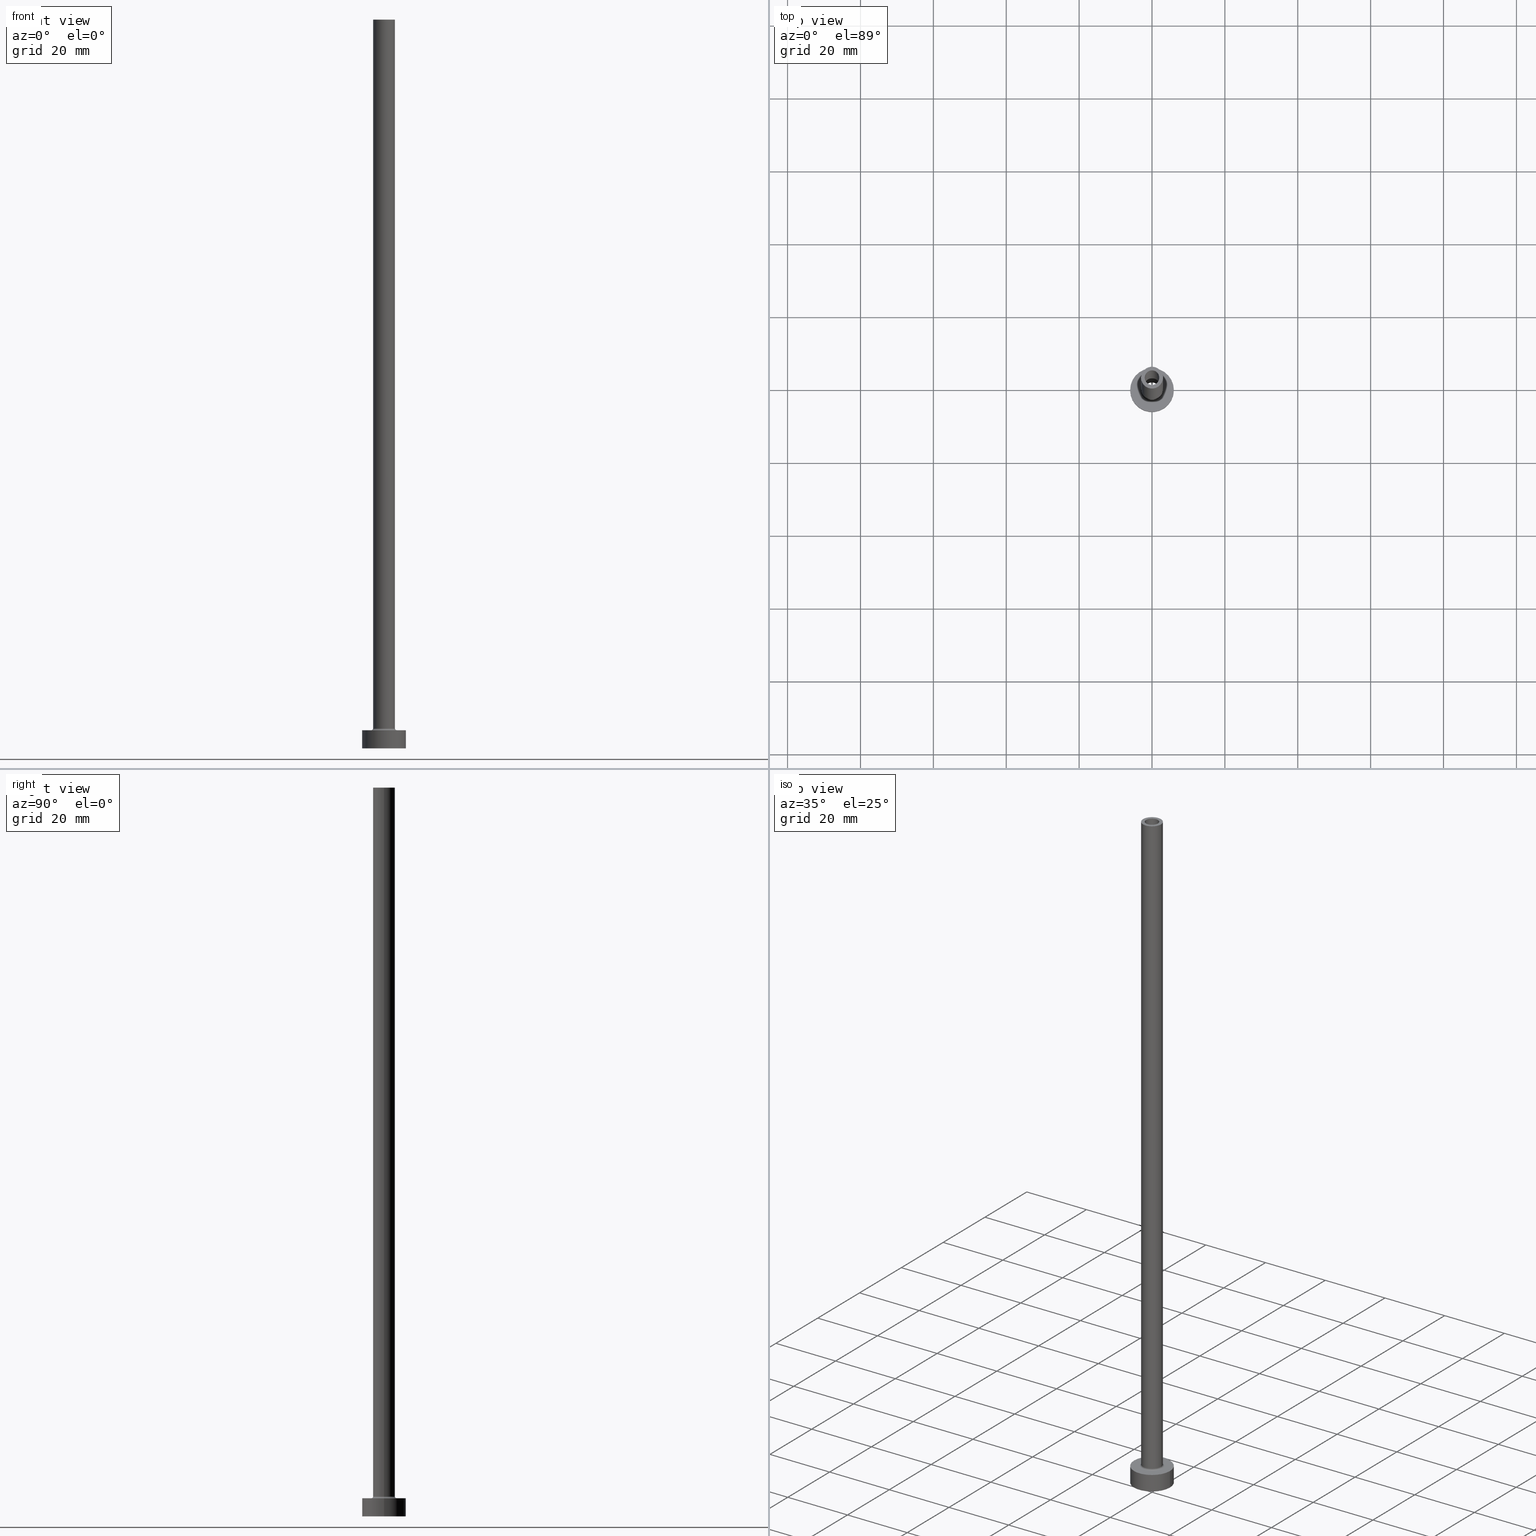
[diagram: canonical four-view strip — front | top / right | iso, engineering-drawing reading convention]
A machine part, canonical four-view strip (front | top / right | iso — engineering-drawing reading convention). The complete STEP part file that produces these views, byte-faithful:
ISO-10303-21;
HEADER;
FILE_DESCRIPTION (( 'STEP AP203' ),
    '1' );
FILE_NAME ('8da7.STEP',
    '2023-02-13T11:08:37',
    ( '' ),
    ( '' ),
    'SwSTEP 2.0',
    'SolidWorks 2019',
    '' );
FILE_SCHEMA (( 'CONFIG_CONTROL_DESIGN' ));
ENDSEC;

DATA;
#1 = AXIS2_PLACEMENT_3D ( 'NONE', #142, #241, #347 ) ;
#2 = CARTESIAN_POINT ( 'NONE',  ( 0.000000000000000000, 0.000000000000000000, 5.500000000000005329 ) ) ;
#3 = DIRECTION ( 'NONE',  ( 0.000000000000000000, 0.000000000000000000, 1.000000000000000000 ) ) ;
#4 = EDGE_CURVE ( 'NONE', #21, #20, #270, .T. ) ;
#5 = DIRECTION ( 'NONE',  ( 1.000000000000000000, 0.000000000000000000, 0.000000000000000000 ) ) ;
#6 = ORIENTED_EDGE ( 'NONE', *, *, #333, .F. ) ;
#7 = LINE ( 'NONE', #283, #454 ) ;
#8 = DIRECTION ( 'NONE',  ( 1.000000000000000000, 0.000000000000000000, 0.000000000000000000 ) ) ;
#9 = VERTEX_POINT ( 'NONE', #225 ) ;
#10 = DIRECTION ( 'NONE',  ( 1.000000000000000000, 0.000000000000000000, 0.000000000000000000 ) ) ;
#11 = FACE_OUTER_BOUND ( 'NONE', #300, .T. ) ;
#12 = DIRECTION ( 'NONE',  ( 0.000000000000000000, 0.000000000000000000, 1.000000000000000000 ) ) ;
#13 = PERSON_AND_ORGANIZATION ( #423, #14 ) ;
#14 = ORGANIZATION ( 'NEUR�EN�', 'NEUR�EN�', '' ) ;
#15 = DIRECTION ( 'NONE',  ( -1.000000000000000000, 0.000000000000000000, 0.000000000000000000 ) ) ;
#16 = ADVANCED_FACE ( 'NONE', ( #372, #56 ), #342, .F. ) ;
#17 = ORIENTED_EDGE ( 'NONE', *, *, #77, .T. ) ;
#18 = APPROVAL_DATE_TIME ( #159, #416 ) ;
#19 = DIRECTION ( 'NONE',  ( 0.000000000000000000, 0.000000000000000000, 1.000000000000000000 ) ) ;
#20 = VERTEX_POINT ( 'NONE', #168 ) ;
#21 = VERTEX_POINT ( 'NONE', #446 ) ;
#22 = CIRCLE ( 'NONE', #185, 3.000000000000000444 ) ;
#23 = CARTESIAN_POINT ( 'NONE',  ( 0.000000000000000000, 0.000000000000000000, 0.000000000000000000 ) ) ;
#24 = EDGE_CURVE ( 'NONE', #50, #321, #407, .T. ) ;
#25 = FACE_OUTER_BOUND ( 'NONE', #250, .T. ) ;
#26 = PRODUCT_DEFINITION ( 'NEZN�M�', '', #253, #437 ) ;
#27 = ORIENTED_EDGE ( 'NONE', *, *, #48, .T. ) ;
#28 = DIRECTION ( 'NONE',  ( 1.000000000000000000, 0.000000000000000000, 0.000000000000000000 ) ) ;
#29 = PERSON_AND_ORGANIZATION_ROLE ( 'creator' ) ;
#30 = DIRECTION ( 'NONE',  ( -0.000000000000000000, -0.000000000000000000, -1.000000000000000000 ) ) ;
#31 = CIRCLE ( 'NONE', #286, 2.000000000000000000 ) ;
#32 = DIRECTION ( 'NONE',  ( -1.000000000000000000, 0.000000000000000000, 0.000000000000000000 ) ) ;
#33 = FACE_OUTER_BOUND ( 'NONE', #361, .T. ) ;
#34 = ADVANCED_FACE ( 'NONE', ( #111 ), #119, .F. ) ;
#35 = AXIS2_PLACEMENT_3D ( 'NONE', #382, #349, #315 ) ;
#36 = VECTOR ( 'NONE', #447, 1000.000000000000000 ) ;
#37 = AXIS2_PLACEMENT_3D ( 'NONE', #421, #117, #10 ) ;
#38 = FACE_BOUND ( 'NONE', #338, .T. ) ;
#39 = DIRECTION ( 'NONE',  ( -1.000000000000000000, 0.000000000000000000, 0.000000000000000000 ) ) ;
#40 = EDGE_CURVE ( 'NONE', #226, #288, #153, .T. ) ;
#41 = ORIENTED_EDGE ( 'NONE', *, *, #238, .T. ) ;
#42 = CARTESIAN_POINT ( 'NONE',  ( 0.000000000000000000, 0.000000000000000000, 200.0000000000000000 ) ) ;
#43 = FACE_OUTER_BOUND ( 'NONE', #363, .T. ) ;
#44 = ORIENTED_EDGE ( 'NONE', *, *, #193, .F. ) ;
#45 = APPROVAL_PERSON_ORGANIZATION ( #294, #195, #125 ) ;
#46 = EDGE_LOOP ( 'NONE', ( #410, #61, #187, #93 ) ) ;
#47 = DIRECTION ( 'NONE',  ( 0.000000000000000000, 0.000000000000000000, 1.000000000000000000 ) ) ;
#48 = EDGE_CURVE ( 'NONE', #321, #81, #399, .T. ) ;
#49 = CARTESIAN_POINT ( 'NONE',  ( 0.000000000000000000, 0.000000000000000000, 155.0000000000000284 ) ) ;
#50 = VERTEX_POINT ( 'NONE', #314 ) ;
#51 = ORIENTED_EDGE ( 'NONE', *, *, #4, .T. ) ;
#52 = DIRECTION ( 'NONE',  ( -1.000000000000000000, 0.000000000000000000, 0.000000000000000000 ) ) ;
#53 = ORIENTED_EDGE ( 'NONE', *, *, #232, .F. ) ;
#54 = EDGE_CURVE ( 'NONE', #376, #302, #308, .T. ) ;
#55 = CARTESIAN_POINT ( 'NONE',  ( 0.000000000000000000, 0.000000000000000000, 5.000000000000000000 ) ) ;
#56 = FACE_OUTER_BOUND ( 'NONE', #271, .T. ) ;
#57 = CARTESIAN_POINT ( 'NONE',  ( 0.000000000000000000, 0.000000000000000000, 200.0000000000000000 ) ) ;
#58 = DIRECTION ( 'NONE',  ( 1.000000000000000000, 0.000000000000000000, 0.000000000000000000 ) ) ;
#59 = AXIS2_PLACEMENT_3D ( 'NONE', #277, #79, #211 ) ;
#60 = AXIS2_PLACEMENT_3D ( 'NONE', #394, #249, #84 ) ;
#61 = ORIENTED_EDGE ( 'NONE', *, *, #333, .T. ) ;
#62 = EDGE_CURVE ( 'NONE', #9, #226, #71, .T. ) ;
#63 = ORIENTED_EDGE ( 'NONE', *, *, #62, .F. ) ;
#64 = DATE_AND_TIME ( #231, #272 ) ;
#65 = DIRECTION ( 'NONE',  ( 0.000000000000000000, 0.000000000000000000, 1.000000000000000000 ) ) ;
#66 = CALENDAR_DATE ( 2023, 13, 2 ) ;
#67 = ADVANCED_FACE ( 'NONE', ( #33 ), #420, .T. ) ;
#68 = EDGE_CURVE ( 'NONE', #329, #259, #383, .T. ) ;
#69 = AXIS2_PLACEMENT_3D ( 'NONE', #285, #90, #365 ) ;
#70 = DATE_TIME_ROLE ( 'classification_date' ) ;
#71 = LINE ( 'NONE', #72, #290 ) ;
#72 = CARTESIAN_POINT ( 'NONE',  ( -2.000000000000000000, 0.000000000000000000, 200.0000000000000000 ) ) ;
#73 = ADVANCED_FACE ( 'NONE', ( #424, #362 ), #325, .F. ) ;
#74 = CC_DESIGN_PERSON_AND_ORGANIZATION_ASSIGNMENT ( #346, #29, ( #26 ) ) ;
#75 = SECURITY_CLASSIFICATION ( '', '', #237 ) ;
#76 = AXIS2_PLACEMENT_3D ( 'NONE', #461, #282, #355 ) ;
#77 = EDGE_CURVE ( 'NONE', #86, #439, #7, .T. ) ;
#78 = EDGE_CURVE ( 'NONE', #266, #400, #99, .T. ) ;
#79 = DIRECTION ( 'NONE',  ( 0.000000000000000000, 0.000000000000000000, -1.000000000000000000 ) ) ;
#80 = EDGE_LOOP ( 'NONE', ( #44, #184 ) ) ;
#81 = VERTEX_POINT ( 'NONE', #386 ) ;
#82 = CARTESIAN_POINT ( 'NONE',  ( -3.000000000000000444, 0.000000000000000000, 5.500000000000005329 ) ) ;
#83 = CIRCLE ( 'NONE', #227, 3.500000000000000444 ) ;
#84 = DIRECTION ( 'NONE',  ( 1.000000000000000000, 0.000000000000000000, -0.000000000000000000 ) ) ;
#85 = CARTESIAN_POINT ( 'NONE',  ( 0.000000000000000000, 0.000000000000000000, 200.0000000000000000 ) ) ;
#86 = VERTEX_POINT ( 'NONE', #322 ) ;
#87 = CYLINDRICAL_SURFACE ( 'NONE', #273, 2.000000000000000000 ) ;
#88 = ORIENTED_EDGE ( 'NONE', *, *, #219, .T. ) ;
#89 = EDGE_CURVE ( 'NONE', #302, #376, #201, .T. ) ;
#90 = DIRECTION ( 'NONE',  ( 0.000000000000000000, 0.000000000000000000, 1.000000000000000000 ) ) ;
#91 = APPLICATION_PROTOCOL_DEFINITION ( 'international standard', 'config_control_design', 1994, #432 ) ;
#92 = ORIENTED_EDGE ( 'NONE', *, *, #78, .T. ) ;
#93 = ORIENTED_EDGE ( 'NONE', *, *, #337, .F. ) ;
#94 = DIRECTION ( 'NONE',  ( 1.000000000000000000, 0.000000000000000000, 0.000000000000000000 ) ) ;
#95 = APPROVAL_STATUS ( 'not_yet_approved' ) ;
#96 = ORIENTED_EDGE ( 'NONE', *, *, #327, .T. ) ;
#97 = CARTESIAN_POINT ( 'NONE',  ( -2.149999999999999911, 0.000000000000000000, 155.0000000000000284 ) ) ;
#98 = VECTOR ( 'NONE', #276, 1000.000000000000000 ) ;
#99 = CIRCLE ( 'NONE', #37, 2.149999999999999911 ) ;
#100 = EDGE_LOOP ( 'NONE', ( #354, #182, #436, #63 ) ) ;
#101 = CYLINDRICAL_SURFACE ( 'NONE', #183, 6.000000000000000888 ) ;
#102 = CIRCLE ( 'NONE', #200, 0.5000000000000004441 ) ;
#103 = DATE_AND_TIME ( #409, #167 ) ;
#104 = AXIS2_PLACEMENT_3D ( 'NONE', #216, #47, #188 ) ;
#105 = ADVANCED_FACE ( 'NONE', ( #150 ), #87, .F. ) ;
#106 = PERSON_AND_ORGANIZATION ( #423, #14 ) ;
#107 = LOCAL_TIME ( 12, 8, 37.00000000000000000, #174 ) ;
#108 = CARTESIAN_POINT ( 'NONE',  ( 2.000000000000000000, 2.449293598294705921E-16, 200.0000000000000000 ) ) ;
#109 = CARTESIAN_POINT ( 'NONE',  ( 0.000000000000000000, 0.000000000000000000, 161.0811183182043180 ) ) ;
#110 = CYLINDRICAL_SURFACE ( 'NONE', #59, 2.000000000000000000 ) ;
#111 = FACE_OUTER_BOUND ( 'NONE', #46, .T. ) ;
#112 = DIRECTION ( 'NONE',  ( -0.000000000000000000, -0.000000000000000000, -1.000000000000000000 ) ) ;
#113 = DIRECTION ( 'NONE',  ( 1.000000000000000000, 0.000000000000000000, 0.000000000000000000 ) ) ;
#114 = PERSON_AND_ORGANIZATION ( #423, #14 ) ;
#115 = DIRECTION ( 'NONE',  ( -0.000000000000000000, -0.000000000000000000, -1.000000000000000000 ) ) ;
#116 = ORIENTED_EDGE ( 'NONE', *, *, #337, .T. ) ;
#117 = DIRECTION ( 'NONE',  ( 0.000000000000000000, 0.000000000000000000, 1.000000000000000000 ) ) ;
#118 = CARTESIAN_POINT ( 'NONE',  ( 0.000000000000000000, 0.000000000000000000, 200.0000000000000000 ) ) ;
#119 = TOROIDAL_SURFACE ( 'NONE', #371, 3.500000000000000444, 0.5000000000000000000 ) ;
#120 = EDGE_CURVE ( 'NONE', #329, #86, #246, .T. ) ;
#121 = AXIS2_PLACEMENT_3D ( 'NONE', #133, #309, #58 ) ;
#122 = ORIENTED_EDGE ( 'NONE', *, *, #458, .T. ) ;
#123 = FACE_OUTER_BOUND ( 'NONE', #170, .T. ) ;
#124 = AXIS2_PLACEMENT_3D ( 'NONE', #180, #3, #145 ) ;
#125 = APPROVAL_ROLE ( '' ) ;
#126 = EDGE_LOOP ( 'NONE', ( #6, #345, #116, #312 ) ) ;
#127 = CARTESIAN_POINT ( 'NONE',  ( 2.000000000000000000, 2.449293598294705921E-16, 155.0000000000000284 ) ) ;
#128 = ORIENTED_EDGE ( 'NONE', *, *, #78, .F. ) ;
#129 = CARTESIAN_POINT ( 'NONE',  ( 2.149999999999999911, 2.632990618166809235E-16, 0.000000000000000000 ) ) ;
#130 = CARTESIAN_POINT ( 'NONE',  ( 6.000000000000000888, 7.347880794884120722E-16, 0.000000000000000000 ) ) ;
#131 = EDGE_CURVE ( 'NONE', #427, #288, #147, .T. ) ;
#132 = ORIENTED_EDGE ( 'NONE', *, *, #340, .T. ) ;
#133 = CARTESIAN_POINT ( 'NONE',  ( 0.000000000000000000, 0.000000000000000000, 0.000000000000000000 ) ) ;
#134 = CARTESIAN_POINT ( 'NONE',  ( 6.000000000000000888, 7.347880794884120722E-16, 5.000000000000000000 ) ) ;
#135 = DATE_AND_TIME ( #224, #303 ) ;
#136 = ORIENTED_EDGE ( 'NONE', *, *, #68, .F. ) ;
#137 = FACE_OUTER_BOUND ( 'NONE', #356, .T. ) ;
#138 = AXIS2_PLACEMENT_3D ( 'NONE', #412, #353, #39 ) ;
#139 =( NAMED_UNIT ( * ) PLANE_ANGLE_UNIT ( ) SI_UNIT ( $, .RADIAN. ) );
#140 = DIRECTION ( 'NONE',  ( 0.000000000000000000, 0.000000000000000000, -1.000000000000000000 ) ) ;
#141 = ADVANCED_FACE ( 'NONE', ( #38, #287 ), #428, .T. ) ;
#142 = CARTESIAN_POINT ( 'NONE',  ( 0.000000000000000000, 0.000000000000000000, 0.000000000000000000 ) ) ;
#143 = PERSON_AND_ORGANIZATION ( #423, #14 ) ;
#144 = CYLINDRICAL_SURFACE ( 'NONE', #264, 3.000000000000000444 ) ;
#145 = DIRECTION ( 'NONE',  ( 1.000000000000000000, 0.000000000000000000, 0.000000000000000000 ) ) ;
#146 = EDGE_CURVE ( 'NONE', #86, #329, #377, .T. ) ;
#147 = LINE ( 'NONE', #392, #456 ) ;
#148 = DIRECTION ( 'NONE',  ( 0.000000000000000000, 0.000000000000000000, 1.000000000000000000 ) ) ;
#149 = ORIENTED_EDGE ( 'NONE', *, *, #458, .F. ) ;
#150 = FACE_OUTER_BOUND ( 'NONE', #100, .T. ) ;
#151 = ORIENTED_EDGE ( 'NONE', *, *, #40, .T. ) ;
#152 = UNCERTAINTY_MEASURE_WITH_UNIT (LENGTH_MEASURE( 1.000000000000000082E-05 ), #390, 'distance_accuracy_value', 'NONE');
#153 = CIRCLE ( 'NONE', #236, 2.000000000000000000 ) ;
#154 = CARTESIAN_POINT ( 'NONE',  ( 0.000000000000000000, 0.000000000000000000, 200.0000000000000000 ) ) ;
#155 = PERSON_AND_ORGANIZATION_ROLE ( 'design_owner' ) ;
#156 =( GEOMETRIC_REPRESENTATION_CONTEXT ( 3 ) GLOBAL_UNCERTAINTY_ASSIGNED_CONTEXT ( ( #152 ) ) GLOBAL_UNIT_ASSIGNED_CONTEXT ( ( #390, #139, #240 ) ) REPRESENTATION_CONTEXT ( 'NONE', 'WORKASPACE' ) );
#157 = ORIENTED_EDGE ( 'NONE', *, *, #131, .F. ) ;
#158 = FACE_OUTER_BOUND ( 'NONE', #126, .T. ) ;
#159 = DATE_AND_TIME ( #332, #359 ) ;
#160 = ADVANCED_FACE ( 'NONE', ( #123 ), #430, .F. ) ;
#161 = EDGE_LOOP ( 'NONE', ( #450, #369 ) ) ;
#162 = DIRECTION ( 'NONE',  ( 0.000000000000000000, 0.000000000000000000, 1.000000000000000000 ) ) ;
#163 = SHAPE_DEFINITION_REPRESENTATION ( #196, #209 ) ;
#164 = ORIENTED_EDGE ( 'NONE', *, *, #77, .F. ) ;
#165 = AXIS2_PLACEMENT_3D ( 'NONE', #23, #269, #449 ) ;
#166 = CARTESIAN_POINT ( 'NONE',  ( -3.000000000000000444, 0.000000000000000000, 200.0000000000000000 ) ) ;
#167 = LOCAL_TIME ( 12, 8, 37.00000000000000000, #258 ) ;
#168 = CARTESIAN_POINT ( 'NONE',  ( 3.500000000000000444, 0.000000000000000000, 5.000000000000002665 ) ) ;
#169 = DIRECTION ( 'NONE',  ( 0.000000000000000000, 0.000000000000000000, -1.000000000000000000 ) ) ;
#170 = EDGE_LOOP ( 'NONE', ( #344, #92, #429, #364 ) ) ;
#171 = COORDINATED_UNIVERSAL_TIME_OFFSET ( 1, 0, .AHEAD. ) ;
#172 = ORIENTED_EDGE ( 'NONE', *, *, #54, .F. ) ;
#173 = AXIS2_PLACEMENT_3D ( 'NONE', #154, #292, #5 ) ;
#174 = COORDINATED_UNIVERSAL_TIME_OFFSET ( 1, 0, .AHEAD. ) ;
#175 = CARTESIAN_POINT ( 'NONE',  ( 0.000000000000000000, 0.000000000000000000, 155.0000000000000284 ) ) ;
#176 = CC_DESIGN_APPROVAL ( #195, ( #26 ) ) ;
#177 = DIRECTION ( 'NONE',  ( 0.000000000000000000, 0.000000000000000000, 1.000000000000000000 ) ) ;
#178 = DIRECTION ( 'NONE',  ( 0.000000000000000000, 0.000000000000000000, -1.000000000000000000 ) ) ;
#179 = DIRECTION ( 'NONE',  ( 1.000000000000000000, 0.000000000000000000, 0.000000000000000000 ) ) ;
#180 = CARTESIAN_POINT ( 'NONE',  ( 0.000000000000000000, 0.000000000000000000, 5.000000000000000000 ) ) ;
#181 = CC_DESIGN_DATE_AND_TIME_ASSIGNMENT ( #417, #70, ( #75 ) ) ;
#182 = ORIENTED_EDGE ( 'NONE', *, *, #131, .T. ) ;
#183 = AXIS2_PLACEMENT_3D ( 'NONE', #350, #112, #32 ) ;
#184 = ORIENTED_EDGE ( 'NONE', *, *, #238, .F. ) ;
#185 = AXIS2_PLACEMENT_3D ( 'NONE', #2, #389, #336 ) ;
#186 = APPLICATION_PROTOCOL_DEFINITION ( 'international standard', 'config_control_design', 1994, #310 ) ;
#187 = ORIENTED_EDGE ( 'NONE', *, *, #360, .F. ) ;
#188 = DIRECTION ( 'NONE',  ( 1.000000000000000000, 0.000000000000000000, 0.000000000000000000 ) ) ;
#189 = CC_DESIGN_PERSON_AND_ORGANIZATION_ASSIGNMENT ( #13, #155, ( #265 ) ) ;
#190 = EDGE_LOOP ( 'NONE', ( #53, #128 ) ) ;
#191 = ORIENTED_EDGE ( 'NONE', *, *, #68, .T. ) ;
#192 = ORIENTED_EDGE ( 'NONE', *, *, #297, .T. ) ;
#193 = EDGE_CURVE ( 'NONE', #9, #427, #229, .T. ) ;
#194 = ORIENTED_EDGE ( 'NONE', *, *, #352, .F. ) ;
#195 = APPROVAL ( #435, 'NEUR�EN�' ) ;
#196 = PRODUCT_DEFINITION_SHAPE ( 'NONE', 'NONE',  #26 ) ;
#197 = AXIS2_PLACEMENT_3D ( 'NONE', #281, #251, #213 ) ;
#198 = ORIENTED_EDGE ( 'NONE', *, *, #425, .T. ) ;
#199 = DIRECTION ( 'NONE',  ( 0.000000000000000000, 0.000000000000000000, 1.000000000000000000 ) ) ;
#200 = AXIS2_PLACEMENT_3D ( 'NONE', #444, #298, #169 ) ;
#201 = CIRCLE ( 'NONE', #348, 2.149999999999999911 ) ;
#202 = DIRECTION ( 'NONE',  ( -0.000000000000000000, -0.000000000000000000, -1.000000000000000000 ) ) ;
#203 = ORIENTED_EDGE ( 'NONE', *, *, #120, .F. ) ;
#204 = CYLINDRICAL_SURFACE ( 'NONE', #316, 6.000000000000000888 ) ;
#205 = ORIENTED_EDGE ( 'NONE', *, *, #360, .T. ) ;
#206 = DIRECTION ( 'NONE',  ( 1.000000000000000000, 0.000000000000000000, 0.000000000000000000 ) ) ;
#207 = LINE ( 'NONE', #245, #351 ) ;
#208 = AXIS2_PLACEMENT_3D ( 'NONE', #85, #247, #257 ) ;
#209 = ADVANCED_BREP_SHAPE_REPRESENTATION ( '8da7', ( #405, #210 ), #156 ) ;
#210 = AXIS2_PLACEMENT_3D ( 'NONE', #358, #19, #217 ) ;
#211 = DIRECTION ( 'NONE',  ( -1.000000000000000000, 0.000000000000000000, 0.000000000000000000 ) ) ;
#212 = CARTESIAN_POINT ( 'NONE',  ( 0.000000000000000000, 0.000000000000000000, 0.000000000000000000 ) ) ;
#213 = DIRECTION ( 'NONE',  ( 1.000000000000000000, 0.000000000000000000, -0.000000000000000000 ) ) ;
#214 = EDGE_LOOP ( 'NONE', ( #291, #122 ) ) ;
#215 = FACE_BOUND ( 'NONE', #80, .T. ) ;
#216 = CARTESIAN_POINT ( 'NONE',  ( 0.000000000000000000, 0.000000000000000000, 200.0000000000000000 ) ) ;
#217 = DIRECTION ( 'NONE',  ( 1.000000000000000000, 0.000000000000000000, 0.000000000000000000 ) ) ;
#218 = ORIENTED_EDGE ( 'NONE', *, *, #24, .F. ) ;
#219 = EDGE_CURVE ( 'NONE', #259, #439, #222, .T. ) ;
#220 = CARTESIAN_POINT ( 'NONE',  ( 2.149999999999999911, 2.632990618166809235E-16, 155.0000000000000284 ) ) ;
#221 = ORIENTED_EDGE ( 'NONE', *, *, #48, .F. ) ;
#222 = CIRCLE ( 'NONE', #76, 3.000000000000000444 ) ;
#223 = CARTESIAN_POINT ( 'NONE',  ( 0.000000000000000000, 0.000000000000000000, 5.000000000000000000 ) ) ;
#224 = CALENDAR_DATE ( 2023, 13, 2 ) ;
#225 = CARTESIAN_POINT ( 'NONE',  ( -2.000000000000000000, 0.000000000000000000, 200.0000000000000000 ) ) ;
#226 = VERTEX_POINT ( 'NONE', #324 ) ;
#227 = AXIS2_PLACEMENT_3D ( 'NONE', #223, #370, #267 ) ;
#228 = CC_DESIGN_PERSON_AND_ORGANIZATION_ASSIGNMENT ( #275, #375, ( #253 ) ) ;
#229 = CIRCLE ( 'NONE', #295, 2.000000000000000000 ) ;
#230 = CARTESIAN_POINT ( 'NONE',  ( -3.500000000000000444, 4.286263797015737088E-16, 5.500000000000005329 ) ) ;
#231 = CALENDAR_DATE ( 2023, 13, 2 ) ;
#232 = EDGE_CURVE ( 'NONE', #400, #266, #335, .T. ) ;
#233 = CARTESIAN_POINT ( 'NONE',  ( 0.000000000000000000, 0.000000000000000000, 5.500000000000005329 ) ) ;
#234 = DIRECTION ( 'NONE',  ( 0.000000000000000000, 0.000000000000000000, -1.000000000000000000 ) ) ;
#235 = CLOSED_SHELL ( 'NONE', ( #105, #419, #34, #243, #306, #411, #141, #16, #67, #262, #284, #160, #73, #451 ) ) ;
#236 = AXIS2_PLACEMENT_3D ( 'NONE', #175, #65, #206 ) ;
#237 = SECURITY_CLASSIFICATION_LEVEL ( 'unclassified' ) ;
#238 = EDGE_CURVE ( 'NONE', #427, #9, #31, .T. ) ;
#239 = CARTESIAN_POINT ( 'NONE',  ( 3.000000000000000444, 3.673940397442060361E-16, 5.500000000000005329 ) ) ;
#240 =( NAMED_UNIT ( * ) SI_UNIT ( $, .STERADIAN. ) SOLID_ANGLE_UNIT ( ) );
#241 = DIRECTION ( 'NONE',  ( 0.000000000000000000, 0.000000000000000000, 1.000000000000000000 ) ) ;
#242 = DIRECTION ( 'NONE',  ( -1.000000000000000000, 0.000000000000000000, 0.000000000000000000 ) ) ;
#243 = ADVANCED_FACE ( 'NONE', ( #426 ), #144, .T. ) ;
#244 = COORDINATED_UNIVERSAL_TIME_OFFSET ( 1, 0, .AHEAD. ) ;
#245 = CARTESIAN_POINT ( 'NONE',  ( -6.000000000000000888, 0.000000000000000000, 5.000000000000000000 ) ) ;
#246 = CIRCLE ( 'NONE', #173, 3.000000000000000444 ) ;
#247 = DIRECTION ( 'NONE',  ( 0.000000000000000000, 0.000000000000000000, 1.000000000000000000 ) ) ;
#248 = EDGE_LOOP ( 'NONE', ( #172, #263 ) ) ;
#249 = DIRECTION ( 'NONE',  ( 0.000000000000000000, 0.000000000000000000, 1.000000000000000000 ) ) ;
#250 = EDGE_LOOP ( 'NONE', ( #218, #396, #198, #132 ) ) ;
#251 = DIRECTION ( 'NONE',  ( 0.000000000000000000, 0.000000000000000000, 1.000000000000000000 ) ) ;
#252 = CARTESIAN_POINT ( 'NONE',  ( 0.000000000000000000, 0.000000000000000000, 200.0000000000000000 ) ) ;
#253 = PRODUCT_DEFINITION_FORMATION_WITH_SPECIFIED_SOURCE ( 'LIBOVOLN�', '', #265, .NOT_KNOWN. ) ;
#254 = ORIENTED_EDGE ( 'NONE', *, *, #232, .T. ) ;
#255 = CIRCLE ( 'NONE', #317, 6.000000000000000888 ) ;
#256 = DIRECTION ( 'NONE',  ( -0.000000000000000000, -0.000000000000000000, -1.000000000000000000 ) ) ;
#257 = DIRECTION ( 'NONE',  ( 1.000000000000000000, 0.000000000000000000, -0.000000000000000000 ) ) ;
#258 = COORDINATED_UNIVERSAL_TIME_OFFSET ( 1, 0, .AHEAD. ) ;
#259 = VERTEX_POINT ( 'NONE', #82 ) ;
#260 = DIRECTION ( 'NONE',  ( -0.000000000000000000, -0.000000000000000000, -1.000000000000000000 ) ) ;
#261 = ORIENTED_EDGE ( 'NONE', *, *, #89, .T. ) ;
#262 = ADVANCED_FACE ( 'NONE', ( #215, #433 ), #395, .T. ) ;
#263 = ORIENTED_EDGE ( 'NONE', *, *, #89, .F. ) ;
#264 = AXIS2_PLACEMENT_3D ( 'NONE', #118, #260, #15 ) ;
#265 = PRODUCT ( '8da7', '8da7', '', ( #328 ) ) ;
#266 = VERTEX_POINT ( 'NONE', #220 ) ;
#267 = DIRECTION ( 'NONE',  ( 1.000000000000000000, 0.000000000000000000, 0.000000000000000000 ) ) ;
#268 = PERSON_AND_ORGANIZATION_ROLE ( 'design_supplier' ) ;
#269 = DIRECTION ( 'NONE',  ( 0.000000000000000000, 0.000000000000000000, 1.000000000000000000 ) ) ;
#270 = CIRCLE ( 'NONE', #299, 3.500000000000000444 ) ;
#271 = EDGE_LOOP ( 'NONE', ( #393, #221 ) ) ;
#272 = LOCAL_TIME ( 12, 8, 37.00000000000000000, #311 ) ;
#273 = AXIS2_PLACEMENT_3D ( 'NONE', #42, #330, #289 ) ;
#274 = CARTESIAN_POINT ( 'NONE',  ( 0.000000000000000000, 0.000000000000000000, 5.000000000000000000 ) ) ;
#275 = PERSON_AND_ORGANIZATION ( #423, #14 ) ;
#276 = DIRECTION ( 'NONE',  ( -0.000000000000000000, -0.000000000000000000, -1.000000000000000000 ) ) ;
#277 = CARTESIAN_POINT ( 'NONE',  ( 0.000000000000000000, 0.000000000000000000, 200.0000000000000000 ) ) ;
#278 = CIRCLE ( 'NONE', #442, 0.4999999999999995559 ) ;
#279 = APPROVAL_ROLE ( '' ) ;
#280 = CC_DESIGN_PERSON_AND_ORGANIZATION_ASSIGNMENT ( #114, #384, ( #75 ) ) ;
#281 = CARTESIAN_POINT ( 'NONE',  ( 0.000000000000000000, 0.000000000000000000, 155.0000000000000284 ) ) ;
#282 = DIRECTION ( 'NONE',  ( 0.000000000000000000, 0.000000000000000000, 1.000000000000000000 ) ) ;
#283 = CARTESIAN_POINT ( 'NONE',  ( 3.000000000000000444, 3.673940397442060361E-16, 200.0000000000000000 ) ) ;
#284 = ADVANCED_FACE ( 'NONE', ( #158 ), #323, .F. ) ;
#285 = CARTESIAN_POINT ( 'NONE',  ( 0.000000000000000000, 0.000000000000000000, 5.500000000000005329 ) ) ;
#286 = AXIS2_PLACEMENT_3D ( 'NONE', #252, #148, #331 ) ;
#287 = FACE_OUTER_BOUND ( 'NONE', #214, .T. ) ;
#288 = VERTEX_POINT ( 'NONE', #127 ) ;
#289 = DIRECTION ( 'NONE',  ( -1.000000000000000000, 0.000000000000000000, 0.000000000000000000 ) ) ;
#290 = VECTOR ( 'NONE', #459, 1000.000000000000000 ) ;
#291 = ORIENTED_EDGE ( 'NONE', *, *, #319, .T. ) ;
#292 = DIRECTION ( 'NONE',  ( 0.000000000000000000, 0.000000000000000000, 1.000000000000000000 ) ) ;
#293 = AXIS2_PLACEMENT_3D ( 'NONE', #109, #234, #242 ) ;
#294 = PERSON_AND_ORGANIZATION ( #423, #14 ) ;
#295 = AXIS2_PLACEMENT_3D ( 'NONE', #57, #199, #304 ) ;
#296 = ORIENTED_EDGE ( 'NONE', *, *, #413, .F. ) ;
#297 = EDGE_CURVE ( 'NONE', #439, #259, #22, .T. ) ;
#298 = DIRECTION ( 'NONE',  ( 0.000000000000000000, -1.000000000000000000, 0.000000000000000000 ) ) ;
#299 = AXIS2_PLACEMENT_3D ( 'NONE', #55, #30, #339 ) ;
#300 = EDGE_LOOP ( 'NONE', ( #149, #307, #27, #378 ) ) ;
#301 = VECTOR ( 'NONE', #140, 1000.000000000000000 ) ;
#302 = VERTEX_POINT ( 'NONE', #129 ) ;
#303 = LOCAL_TIME ( 12, 8, 37.00000000000000000, #171 ) ;
#304 = DIRECTION ( 'NONE',  ( 1.000000000000000000, 0.000000000000000000, 0.000000000000000000 ) ) ;
#305 = CARTESIAN_POINT ( 'NONE',  ( -2.149999999999999911, 0.000000000000000000, 0.000000000000000000 ) ) ;
#306 = ADVANCED_FACE ( 'NONE', ( #11 ), #204, .T. ) ;
#307 = ORIENTED_EDGE ( 'NONE', *, *, #24, .T. ) ;
#308 = CIRCLE ( 'NONE', #35, 2.149999999999999911 ) ;
#309 = DIRECTION ( 'NONE',  ( 0.000000000000000000, 0.000000000000000000, 1.000000000000000000 ) ) ;
#310 = APPLICATION_CONTEXT ( 'configuration controlled 3d designs of mechanical parts and assemblies' ) ;
#311 = COORDINATED_UNIVERSAL_TIME_OFFSET ( 1, 0, .AHEAD. ) ;
#312 = ORIENTED_EDGE ( 'NONE', *, *, #4, .F. ) ;
#313 = LINE ( 'NONE', #452, #301 ) ;
#314 = CARTESIAN_POINT ( 'NONE',  ( 6.000000000000000888, 7.347880794884120722E-16, 5.000000000000000000 ) ) ;
#315 = DIRECTION ( 'NONE',  ( 1.000000000000000000, 0.000000000000000000, 0.000000000000000000 ) ) ;
#316 = AXIS2_PLACEMENT_3D ( 'NONE', #402, #202, #52 ) ;
#317 = AXIS2_PLACEMENT_3D ( 'NONE', #274, #162, #28 ) ;
#318 = PRODUCT_RELATED_PRODUCT_CATEGORY ( 'detail', '', ( #265 ) ) ;
#319 = EDGE_CURVE ( 'NONE', #366, #50, #255, .T. ) ;
#320 = DIRECTION ( 'NONE',  ( -0.000000000000000000, -0.000000000000000000, -1.000000000000000000 ) ) ;
#321 = VERTEX_POINT ( 'NONE', #130 ) ;
#322 = CARTESIAN_POINT ( 'NONE',  ( 3.000000000000000444, 3.673940397442060361E-16, 200.0000000000000000 ) ) ;
#323 = TOROIDAL_SURFACE ( 'NONE', #69, 3.500000000000000444, 0.5000000000000000000 ) ;
#324 = CARTESIAN_POINT ( 'NONE',  ( -2.000000000000000000, 0.000000000000000000, 155.0000000000000284 ) ) ;
#325 = PLANE ( 'NONE',  #197 ) ;
#326 = CC_DESIGN_DATE_AND_TIME_ASSIGNMENT ( #64, #415, ( #26 ) ) ;
#327 = EDGE_CURVE ( 'NONE', #266, #302, #374, .T. ) ;
#328 = MECHANICAL_CONTEXT ( 'NONE', #310, 'mechanical' ) ;
#329 = VERTEX_POINT ( 'NONE', #166 ) ;
#330 = DIRECTION ( 'NONE',  ( 0.000000000000000000, 0.000000000000000000, -1.000000000000000000 ) ) ;
#331 = DIRECTION ( 'NONE',  ( 1.000000000000000000, 0.000000000000000000, 0.000000000000000000 ) ) ;
#332 = CALENDAR_DATE ( 2023, 13, 2 ) ;
#333 = EDGE_CURVE ( 'NONE', #259, #21, #278, .T. ) ;
#334 = APPROVAL_PERSON_ORGANIZATION ( #403, #368, #379 ) ;
#335 = CIRCLE ( 'NONE', #387, 2.149999999999999911 ) ;
#336 = DIRECTION ( 'NONE',  ( 1.000000000000000000, 0.000000000000000000, 0.000000000000000000 ) ) ;
#337 = EDGE_CURVE ( 'NONE', #439, #20, #102, .T. ) ;
#338 = EDGE_LOOP ( 'NONE', ( #205, #51 ) ) ;
#339 = DIRECTION ( 'NONE',  ( 1.000000000000000000, 0.000000000000000000, 0.000000000000000000 ) ) ;
#340 = EDGE_CURVE ( 'NONE', #81, #321, #357, .T. ) ;
#341 = CC_DESIGN_APPROVAL ( #368, ( #253 ) ) ;
#342 = PLANE ( 'NONE',  #165 ) ;
#343 = DIRECTION ( 'NONE',  ( -1.000000000000000000, 1.224646799147354440E-16, 0.000000000000000000 ) ) ;
#344 = ORIENTED_EDGE ( 'NONE', *, *, #327, .F. ) ;
#345 = ORIENTED_EDGE ( 'NONE', *, *, #297, .F. ) ;
#346 = PERSON_AND_ORGANIZATION ( #423, #14 ) ;
#347 = DIRECTION ( 'NONE',  ( 1.000000000000000000, 0.000000000000000000, 0.000000000000000000 ) ) ;
#348 = AXIS2_PLACEMENT_3D ( 'NONE', #212, #256, #113 ) ;
#349 = DIRECTION ( 'NONE',  ( -0.000000000000000000, -0.000000000000000000, -1.000000000000000000 ) ) ;
#350 = CARTESIAN_POINT ( 'NONE',  ( 0.000000000000000000, 0.000000000000000000, 5.000000000000000000 ) ) ;
#351 = VECTOR ( 'NONE', #115, 1000.000000000000000 ) ;
#352 = EDGE_CURVE ( 'NONE', #288, #226, #457, .T. ) ;
#353 = DIRECTION ( 'NONE',  ( -0.000000000000000000, -0.000000000000000000, -1.000000000000000000 ) ) ;
#354 = ORIENTED_EDGE ( 'NONE', *, *, #193, .T. ) ;
#355 = DIRECTION ( 'NONE',  ( 1.000000000000000000, 0.000000000000000000, 0.000000000000000000 ) ) ;
#356 = EDGE_LOOP ( 'NONE', ( #254, #96, #261, #296 ) ) ;
#357 = CIRCLE ( 'NONE', #121, 6.000000000000000888 ) ;
#358 = CARTESIAN_POINT ( 'NONE',  ( 0.000000000000000000, 0.000000000000000000, 0.000000000000000000 ) ) ;
#359 = LOCAL_TIME ( 12, 8, 37.00000000000000000, #244 ) ;
#360 = EDGE_CURVE ( 'NONE', #20, #21, #83, .T. ) ;
#361 = EDGE_LOOP ( 'NONE', ( #164, #203, #191, #88 ) ) ;
#362 = FACE_OUTER_BOUND ( 'NONE', #190, .T. ) ;
#363 = EDGE_LOOP ( 'NONE', ( #157, #41, #443, #194 ) ) ;
#364 = ORIENTED_EDGE ( 'NONE', *, *, #54, .T. ) ;
#365 = DIRECTION ( 'NONE',  ( 1.000000000000000000, 0.000000000000000000, 0.000000000000000000 ) ) ;
#366 = VERTEX_POINT ( 'NONE', #406 ) ;
#367 = CARTESIAN_POINT ( 'NONE',  ( 2.149999999999999911, 2.632990618166809235E-16, 161.0811183182043180 ) ) ;
#368 = APPROVAL ( #95, 'NEUR�EN�' ) ;
#369 = ORIENTED_EDGE ( 'NONE', *, *, #146, .T. ) ;
#370 = DIRECTION ( 'NONE',  ( -0.000000000000000000, -0.000000000000000000, -1.000000000000000000 ) ) ;
#371 = AXIS2_PLACEMENT_3D ( 'NONE', #233, #177, #179 ) ;
#372 = FACE_BOUND ( 'NONE', #248, .T. ) ;
#373 = DIRECTION ( 'NONE',  ( -1.000000000000000000, 0.000000000000000000, 0.000000000000000000 ) ) ;
#374 = LINE ( 'NONE', #367, #36 ) ;
#375 = PERSON_AND_ORGANIZATION_ROLE ( 'creator' ) ;
#376 = VERTEX_POINT ( 'NONE', #305 ) ;
#377 = CIRCLE ( 'NONE', #104, 3.000000000000000444 ) ;
#378 = ORIENTED_EDGE ( 'NONE', *, *, #425, .F. ) ;
#379 = APPROVAL_ROLE ( '' ) ;
#380 = VECTOR ( 'NONE', #460, 1000.000000000000000 ) ;
#381 = AXIS2_PLACEMENT_3D ( 'NONE', #438, #440, #94 ) ;
#382 = CARTESIAN_POINT ( 'NONE',  ( 0.000000000000000000, 0.000000000000000000, 0.000000000000000000 ) ) ;
#383 = LINE ( 'NONE', #388, #380 ) ;
#384 = PERSON_AND_ORGANIZATION_ROLE ( 'classification_officer' ) ;
#385 = CC_DESIGN_APPROVAL ( #416, ( #75 ) ) ;
#386 = CARTESIAN_POINT ( 'NONE',  ( -6.000000000000000888, 0.000000000000000000, 0.000000000000000000 ) ) ;
#387 = AXIS2_PLACEMENT_3D ( 'NONE', #49, #12, #8 ) ;
#388 = CARTESIAN_POINT ( 'NONE',  ( -3.000000000000000444, 0.000000000000000000, 200.0000000000000000 ) ) ;
#389 = DIRECTION ( 'NONE',  ( 0.000000000000000000, 0.000000000000000000, 1.000000000000000000 ) ) ;
#390 =( LENGTH_UNIT ( ) NAMED_UNIT ( * ) SI_UNIT ( .MILLI., .METRE. ) );
#391 = EDGE_LOOP ( 'NONE', ( #422, #17, #192, #136 ) ) ;
#392 = CARTESIAN_POINT ( 'NONE',  ( 2.000000000000000000, 2.449293598294705921E-16, 200.0000000000000000 ) ) ;
#393 = ORIENTED_EDGE ( 'NONE', *, *, #340, .F. ) ;
#394 = CARTESIAN_POINT ( 'NONE',  ( 0.000000000000000000, 0.000000000000000000, 5.000000000000000000 ) ) ;
#395 = PLANE ( 'NONE',  #208 ) ;
#396 = ORIENTED_EDGE ( 'NONE', *, *, #319, .F. ) ;
#397 = CARTESIAN_POINT ( 'NONE',  ( 0.000000000000000000, 0.000000000000000000, 161.0811183182043180 ) ) ;
#398 = EDGE_LOOP ( 'NONE', ( #151, #404 ) ) ;
#399 = CIRCLE ( 'NONE', #1, 6.000000000000000888 ) ;
#400 = VERTEX_POINT ( 'NONE', #97 ) ;
#401 = DIRECTION ( 'NONE',  ( 0.000000000000000000, 0.000000000000000000, -1.000000000000000000 ) ) ;
#402 = CARTESIAN_POINT ( 'NONE',  ( 0.000000000000000000, 0.000000000000000000, 5.000000000000000000 ) ) ;
#403 = PERSON_AND_ORGANIZATION ( #423, #14 ) ;
#404 = ORIENTED_EDGE ( 'NONE', *, *, #352, .T. ) ;
#405 = MANIFOLD_SOLID_BREP ( 'Odebrat vysunut�m4', #235 ) ;
#406 = CARTESIAN_POINT ( 'NONE',  ( -6.000000000000000888, 0.000000000000000000, 5.000000000000000000 ) ) ;
#407 = LINE ( 'NONE', #134, #98 ) ;
#408 = DIRECTION ( 'NONE',  ( 1.224646799147353207E-16, 1.000000000000000000, -0.000000000000000000 ) ) ;
#409 = CALENDAR_DATE ( 2023, 13, 2 ) ;
#410 = ORIENTED_EDGE ( 'NONE', *, *, #219, .F. ) ;
#411 = ADVANCED_FACE ( 'NONE', ( #25 ), #101, .T. ) ;
#412 = CARTESIAN_POINT ( 'NONE',  ( 0.000000000000000000, 0.000000000000000000, 200.0000000000000000 ) ) ;
#413 = EDGE_CURVE ( 'NONE', #400, #376, #313, .T. ) ;
#414 = CYLINDRICAL_SURFACE ( 'NONE', #293, 2.149999999999999911 ) ;
#415 = DATE_TIME_ROLE ( 'creation_date' ) ;
#416 = APPROVAL ( #455, 'NEUR�EN�' ) ;
#417 = DATE_AND_TIME ( #66, #107 ) ;
#418 = CC_DESIGN_SECURITY_CLASSIFICATION ( #75, ( #253 ) ) ;
#419 = ADVANCED_FACE ( 'NONE', ( #137 ), #414, .F. ) ;
#420 = CYLINDRICAL_SURFACE ( 'NONE', #138, 3.000000000000000444 ) ;
#421 = CARTESIAN_POINT ( 'NONE',  ( 0.000000000000000000, 0.000000000000000000, 155.0000000000000284 ) ) ;
#422 = ORIENTED_EDGE ( 'NONE', *, *, #146, .F. ) ;
#423 = PERSON ( 'NEUR�EN�', 'NEUR�EN�', 'NEUR�EN�', ('NEUR�EN�'), ('NEUR�EN�'), ('NEUR�EN�') ) ;
#424 = FACE_BOUND ( 'NONE', #398, .T. ) ;
#425 = EDGE_CURVE ( 'NONE', #366, #81, #207, .T. ) ;
#426 = FACE_OUTER_BOUND ( 'NONE', #391, .T. ) ;
#427 = VERTEX_POINT ( 'NONE', #108 ) ;
#428 = PLANE ( 'NONE',  #60 ) ;
#429 = ORIENTED_EDGE ( 'NONE', *, *, #413, .T. ) ;
#430 = CYLINDRICAL_SURFACE ( 'NONE', #434, 2.149999999999999911 ) ;
#431 = APPROVAL_PERSON_ORGANIZATION ( #143, #416, #279 ) ;
#432 = APPLICATION_CONTEXT ( 'configuration controlled 3d designs of mechanical parts and assemblies' ) ;
#433 = FACE_OUTER_BOUND ( 'NONE', #161, .T. ) ;
#434 = AXIS2_PLACEMENT_3D ( 'NONE', #397, #401, #373 ) ;
#435 = APPROVAL_STATUS ( 'not_yet_approved' ) ;
#436 = ORIENTED_EDGE ( 'NONE', *, *, #40, .F. ) ;
#437 = DESIGN_CONTEXT ( 'detailed design', #432, 'design' ) ;
#438 = CARTESIAN_POINT ( 'NONE',  ( 0.000000000000000000, 0.000000000000000000, 155.0000000000000284 ) ) ;
#439 = VERTEX_POINT ( 'NONE', #239 ) ;
#440 = DIRECTION ( 'NONE',  ( 0.000000000000000000, 0.000000000000000000, 1.000000000000000000 ) ) ;
#441 = CIRCLE ( 'NONE', #124, 6.000000000000000888 ) ;
#442 = AXIS2_PLACEMENT_3D ( 'NONE', #230, #408, #343 ) ;
#443 = ORIENTED_EDGE ( 'NONE', *, *, #62, .T. ) ;
#444 = CARTESIAN_POINT ( 'NONE',  ( 3.500000000000000444, 0.000000000000000000, 5.500000000000005329 ) ) ;
#445 = APPROVAL_DATE_TIME ( #135, #368 ) ;
#446 = CARTESIAN_POINT ( 'NONE',  ( -3.500000000000000444, 4.286263797015737088E-16, 5.000000000000002665 ) ) ;
#447 = DIRECTION ( 'NONE',  ( 0.000000000000000000, 0.000000000000000000, -1.000000000000000000 ) ) ;
#448 = CC_DESIGN_PERSON_AND_ORGANIZATION_ASSIGNMENT ( #106, #268, ( #253 ) ) ;
#449 = DIRECTION ( 'NONE',  ( 1.000000000000000000, 0.000000000000000000, -0.000000000000000000 ) ) ;
#450 = ORIENTED_EDGE ( 'NONE', *, *, #120, .T. ) ;
#451 = ADVANCED_FACE ( 'NONE', ( #43 ), #110, .F. ) ;
#452 = CARTESIAN_POINT ( 'NONE',  ( -2.149999999999999911, 0.000000000000000000, 161.0811183182043180 ) ) ;
#453 = APPROVAL_DATE_TIME ( #103, #195 ) ;
#454 = VECTOR ( 'NONE', #320, 1000.000000000000000 ) ;
#455 = APPROVAL_STATUS ( 'not_yet_approved' ) ;
#456 = VECTOR ( 'NONE', #178, 1000.000000000000000 ) ;
#457 = CIRCLE ( 'NONE', #381, 2.000000000000000000 ) ;
#458 = EDGE_CURVE ( 'NONE', #50, #366, #441, .T. ) ;
#459 = DIRECTION ( 'NONE',  ( 0.000000000000000000, 0.000000000000000000, -1.000000000000000000 ) ) ;
#460 = DIRECTION ( 'NONE',  ( -0.000000000000000000, -0.000000000000000000, -1.000000000000000000 ) ) ;
#461 = CARTESIAN_POINT ( 'NONE',  ( 0.000000000000000000, 0.000000000000000000, 5.500000000000005329 ) ) ;
ENDSEC;
END-ISO-10303-21;
